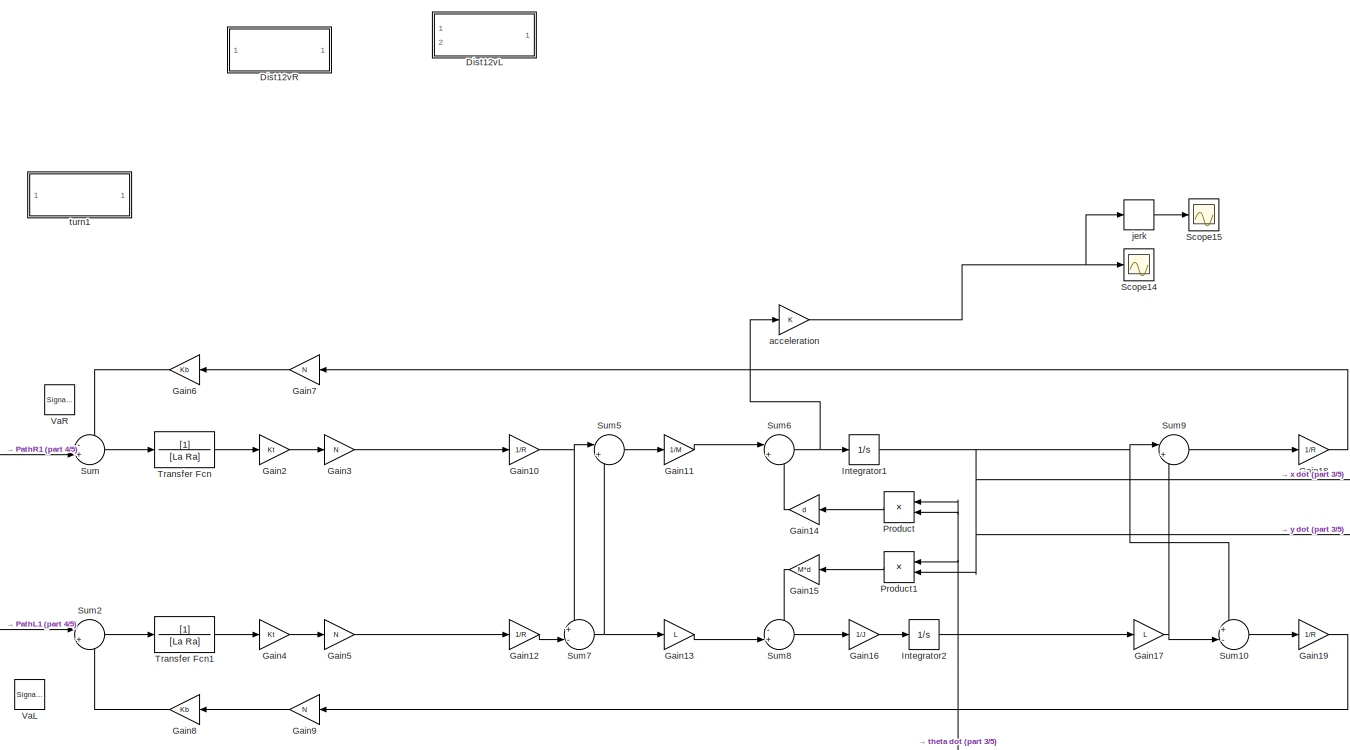
[diagram: root canvas - part 1/5, top center region]
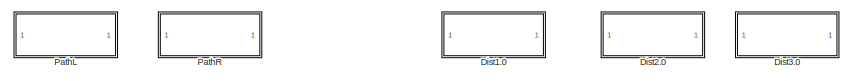
[diagram: root canvas - part 2/5, top left region]
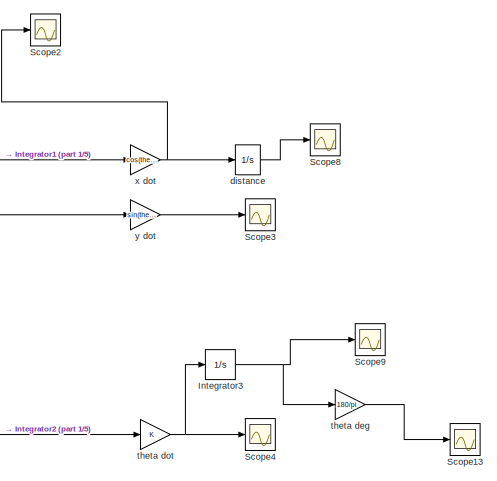
[diagram: root canvas - part 3/5, middle right region]
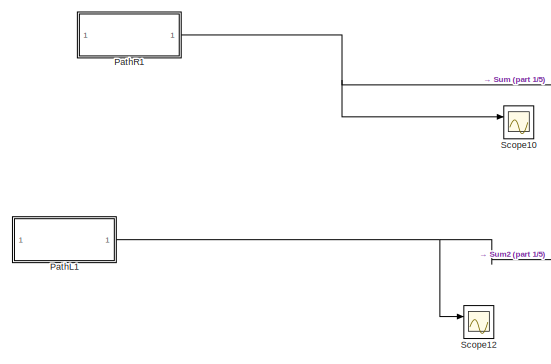
[diagram: root canvas - part 4/5, middle left region]
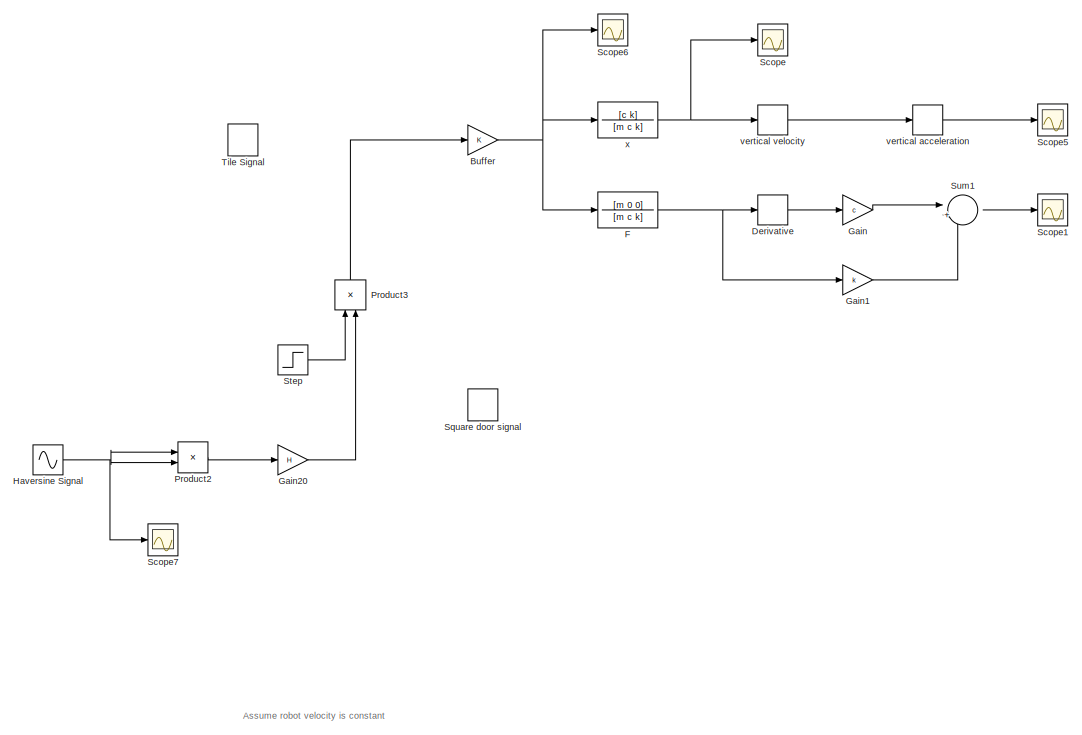
[diagram: root canvas - part 5/5, bottom center region]
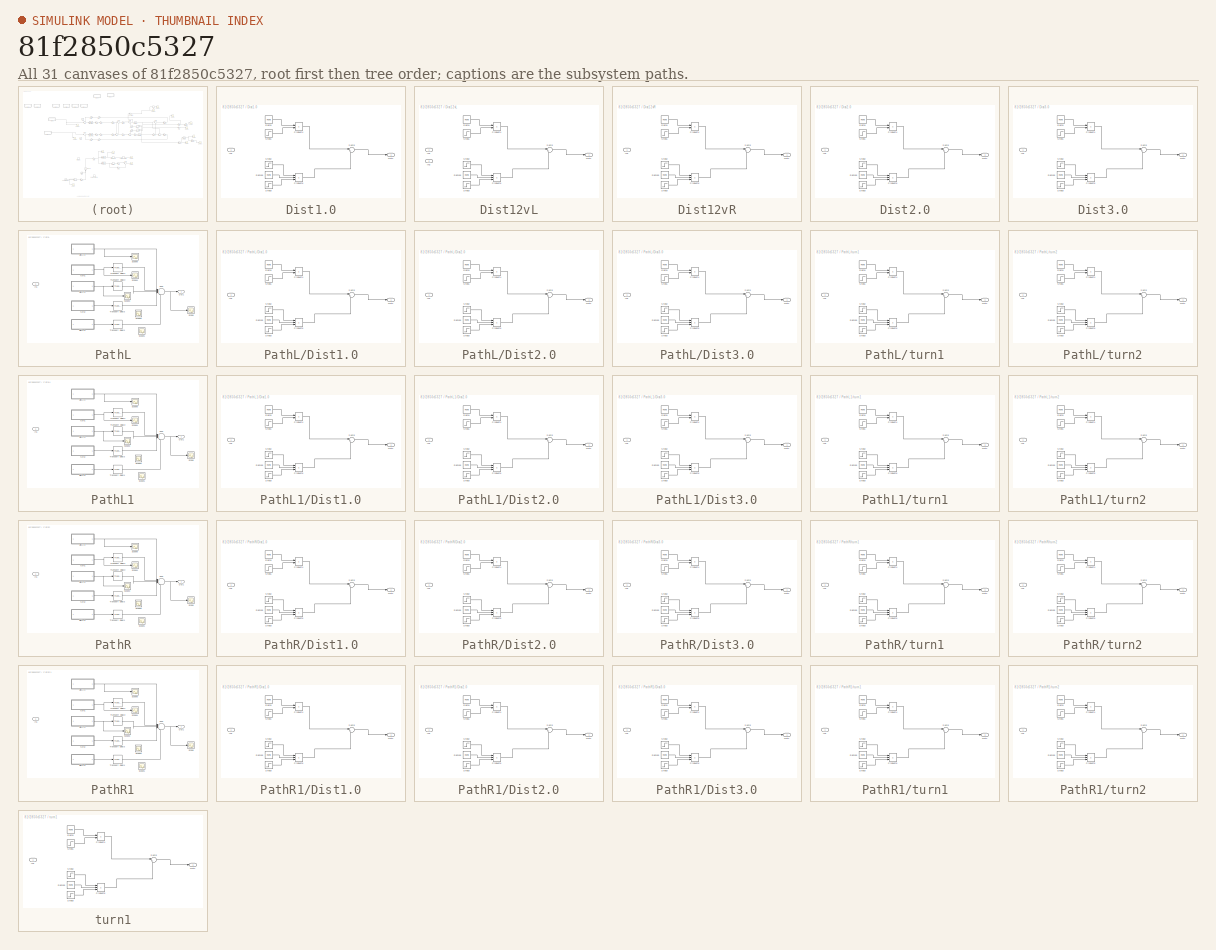
[diagram: thumbnail index - all 31 canvases of the model, root first then tree order]
MODEL slx_81f2850c5327
KIND model
CONFIG AbsTol = auto
CONFIG EnableMultiTasking = off
CONFIG FixedStep = auto
CONFIG MaxStep = auto
CONFIG MinStep = auto
CONFIG RelTol = 1e-3
CONFIG SampleTimeConstraint = Unconstrained
CONFIG SolverName = VariableStepAuto
CONFIG StartTime = 0.0
CONFIG StopTime = 35
BLOCK [Gain] Buffer
BLOCK [Derivative] Derivative
BLOCK [SubSystem] Dist1.0
  Ports = [1, 1]
  RequestExecContextInheritance = off
BLOCK [Inport] Dist1.0/In1
BLOCK [Outport] Dist1.0/Out1
BLOCK [Product] Dist1.0/Product4
  Ports = [2, 1]
BLOCK [Product] Dist1.0/Product6
  Inputs = 3
  Ports = [3, 1]
BLOCK [Reference] Dist1.0/Ramp  REF=simulink/Sources/Ramp
  Ports = [0, 1]
  SourceBlock = simulink/Sources/Ramp
  SourceProductBaseCode = SL
  SourceType = Ramp
BLOCK [Reference] Dist1.0/Ramp3  REF=simulink/Sources/Ramp
  Ports = [0, 1]
  SourceBlock = simulink/Sources/Ramp
  SourceProductBaseCode = SL
  SourceType = Ramp
BLOCK [Step] Dist1.0/Step1
  After = 0
  Before = 1
  SampleTime = 0
  Time = 2.774316232
BLOCK [Step] Dist1.0/Step2
  NameLocation = left
  SampleTime = 0
  Time = 2.774316232
BLOCK [Step] Dist1.0/Step3
  After = 0
  Before = 1
  SampleTime = 0
  Time = 7.5+2.774316232
BLOCK [Sum] Dist1.0/Sum3
  Inputs = |++
  Ports = [2, 1]
BLOCK [SubSystem] Dist12vL
  PortSchema = {"entries":[{"content":{"sides":[{"content":{"connectorIds":["In1"]},"type":"ConnectorPlacement.EquallySpacedRectSide","uuid":"77373f5c-8aad-48a2-be44-9d2188a389c4"},{"content":{"connectorIds":["Out1"],"side":"RIGHT"},"type":"ConnectorPlacement.EquallySpacedRectSide","uuid":"99626a2b-1b19-4808-950b-0fc4e8688bc7"},{"content":{"connectorIds":["In2"],"side":"TOP"},"type":"ConnectorPlacement.EquallySp...<+245ch>
  Ports = [2, 1]
  RequestExecContextInheritance = off
BLOCK [Inport] Dist12vL/In1
BLOCK [Inport] Dist12vL/In2
  Port = 2
BLOCK [Outport] Dist12vL/Out1
BLOCK [Product] Dist12vL/Product4
  Ports = [2, 1]
BLOCK [Product] Dist12vL/Product6
  Inputs = 3
  Ports = [3, 1]
BLOCK [Reference] Dist12vL/Ramp  REF=simulink/Sources/Ramp
  Ports = [0, 1]
  SourceBlock = simulink/Sources/Ramp
  SourceProductBaseCode = SL
  SourceType = Ramp
BLOCK [Reference] Dist12vL/Ramp3  REF=simulink/Sources/Ramp
  Ports = [0, 1]
  SourceBlock = simulink/Sources/Ramp
  SourceProductBaseCode = SL
  SourceType = Ramp
BLOCK [Step] Dist12vL/Step1
  After = 0
  Before = 1
  SampleTime = 0
  Time = 2.774316232
BLOCK [Step] Dist12vL/Step2
  NameLocation = left
  SampleTime = 0
  Time = 2.774316232
BLOCK [Step] Dist12vL/Step3
  After = 0
  Before = 1
  SampleTime = 0
  Time = 7.5+2.774316232
BLOCK [Sum] Dist12vL/Sum3
  Inputs = |++
  Ports = [2, 1]
BLOCK [SubSystem] Dist12vR
  Ports = [1, 1]
  RequestExecContextInheritance = off
BLOCK [Inport] Dist12vR/In1
BLOCK [Outport] Dist12vR/Out1
BLOCK [Product] Dist12vR/Product4
  Ports = [2, 1]
BLOCK [Product] Dist12vR/Product6
  Inputs = 3
  Ports = [3, 1]
BLOCK [Reference] Dist12vR/Ramp  REF=simulink/Sources/Ramp
  Ports = [0, 1]
  SourceBlock = simulink/Sources/Ramp
  SourceProductBaseCode = SL
  SourceType = Ramp
BLOCK [Reference] Dist12vR/Ramp3  REF=simulink/Sources/Ramp
  Ports = [0, 1]
  SourceBlock = simulink/Sources/Ramp
  SourceProductBaseCode = SL
  SourceType = Ramp
BLOCK [Step] Dist12vR/Step1
  After = 0
  Before = 1
  SampleTime = 0
  Time = 2.774316232
BLOCK [Step] Dist12vR/Step2
  NameLocation = left
  SampleTime = 0
  Time = 2.774316232
BLOCK [Step] Dist12vR/Step3
  After = 0
  Before = 1
  SampleTime = 0
  Time = 7.5+2.774316232
BLOCK [Sum] Dist12vR/Sum3
  Inputs = |++
  Ports = [2, 1]
BLOCK [SubSystem] Dist2.0
  Ports = [1, 1]
  RequestExecContextInheritance = off
BLOCK [Inport] Dist2.0/In1
BLOCK [Outport] Dist2.0/Out1
BLOCK [Product] Dist2.0/Product4
  Ports = [2, 1]
BLOCK [Product] Dist2.0/Product6
  Inputs = 3
  Ports = [3, 1]
BLOCK [Reference] Dist2.0/Ramp  REF=simulink/Sources/Ramp
  Ports = [0, 1]
  SourceBlock = simulink/Sources/Ramp
  SourceProductBaseCode = SL
  SourceType = Ramp
BLOCK [Reference] Dist2.0/Ramp3  REF=simulink/Sources/Ramp
  Ports = [0, 1]
  SourceBlock = simulink/Sources/Ramp
  SourceProductBaseCode = SL
  SourceType = Ramp
BLOCK [Step] Dist2.0/Step1
  After = 0
  Before = 1
  SampleTime = 0
  Time = 2.774316232
BLOCK [Step] Dist2.0/Step2
  NameLocation = left
  SampleTime = 0
  Time = 2.774316232
BLOCK [Step] Dist2.0/Step3
  After = 0
  Before = 1
  SampleTime = 0
  Time = 5+2.774316232
BLOCK [Sum] Dist2.0/Sum3
  Inputs = |++
  Ports = [2, 1]
BLOCK [SubSystem] Dist3.0
  Ports = [1, 1]
  RequestExecContextInheritance = off
BLOCK [Inport] Dist3.0/In1
BLOCK [Outport] Dist3.0/Out1
BLOCK [Product] Dist3.0/Product4
  Ports = [2, 1]
BLOCK [Product] Dist3.0/Product6
  Inputs = 3
  Ports = [3, 1]
BLOCK [Reference] Dist3.0/Ramp  REF=simulink/Sources/Ramp
  Ports = [0, 1]
  SourceBlock = simulink/Sources/Ramp
  SourceProductBaseCode = SL
  SourceType = Ramp
BLOCK [Reference] Dist3.0/Ramp3  REF=simulink/Sources/Ramp
  Ports = [0, 1]
  SourceBlock = simulink/Sources/Ramp
  SourceProductBaseCode = SL
  SourceType = Ramp
BLOCK [Step] Dist3.0/Step1
  After = 0
  Before = 1
  SampleTime = 0
  Time = 2.774316232
BLOCK [Step] Dist3.0/Step2
  NameLocation = left
  SampleTime = 0
  Time = 2.774316232
BLOCK [Step] Dist3.0/Step3
  After = 0
  Before = 1
  SampleTime = 0
  Time = 4+2.774316232
BLOCK [Sum] Dist3.0/Sum3
  Inputs = |++
  Ports = [2, 1]
BLOCK [TransferFcn] F
  Denominator = [m c k]
  Numerator = [m 0 0]
BLOCK [Gain] Gain
  Gain = c
BLOCK [Gain] Gain1
  Gain = k
BLOCK [Gain] Gain10
  Gain = 1/R
BLOCK [Gain] Gain11
  Gain = 1/M
BLOCK [Gain] Gain12
  Gain = 1/R
BLOCK [Gain] Gain13
  Gain = L
BLOCK [Gain] Gain14
  Gain = d
BLOCK [Gain] Gain15
  Gain = M*d
BLOCK [Gain] Gain16
  Gain = 1/J
BLOCK [Gain] Gain17
  Gain = L
BLOCK [Gain] Gain18
  Gain = 1/R
BLOCK [Gain] Gain19
  Gain = 1/R
BLOCK [Gain] Gain2
  Gain = Kt
BLOCK [Gain] Gain20
  Gain = H
BLOCK [Gain] Gain3
  Gain = N
BLOCK [Gain] Gain4
  Gain = Kt
BLOCK [Gain] Gain5
  Gain = N
BLOCK [Gain] Gain6
  Gain = Kb
BLOCK [Gain] Gain7
  Gain = N
BLOCK [Gain] Gain8
  Gain = Kb
BLOCK [Gain] Gain9
  Gain = N
BLOCK [Sin] Haversine Signal
  Frequency = pi * v / len
  Ports = [0, 1]
  SampleTime = 0
BLOCK [Integrator] Integrator1
  Ports = [1, 1]
BLOCK [Integrator] Integrator2
  Ports = [1, 1]
BLOCK [Integrator] Integrator3
  Ports = [1, 1]
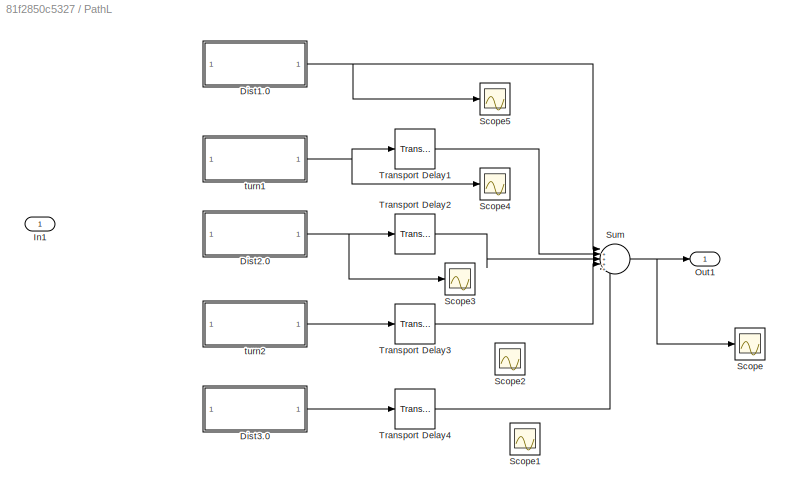
BLOCK [SubSystem] PathL
  Ports = [1, 1]
  RequestExecContextInheritance = off
BLOCK [SubSystem] PathL/Dist1.0
  Ports = [1, 1]
  RequestExecContextInheritance = off
BLOCK [Inport] PathL/Dist1.0/In1
BLOCK [Outport] PathL/Dist1.0/Out1
BLOCK [Product] PathL/Dist1.0/Product4
  Ports = [2, 1]
BLOCK [Product] PathL/Dist1.0/Product6
  Inputs = 3
  Ports = [3, 1]
BLOCK [Reference] PathL/Dist1.0/Ramp  REF=simulink/Sources/Ramp
  Ports = [0, 1]
  SourceBlock = simulink/Sources/Ramp
  SourceProductBaseCode = SL
  SourceType = Ramp
BLOCK [Reference] PathL/Dist1.0/Ramp3  REF=simulink/Sources/Ramp
  Ports = [0, 1]
  SourceBlock = simulink/Sources/Ramp
  SourceProductBaseCode = SL
  SourceType = Ramp
BLOCK [Step] PathL/Dist1.0/Step1
  After = 0
  Before = 1
  SampleTime = 0
  Time = 2.774316232
BLOCK [Step] PathL/Dist1.0/Step2
  NameLocation = left
  SampleTime = 0
  Time = 2.774316232
BLOCK [Step] PathL/Dist1.0/Step3
  After = 0
  Before = 1
  SampleTime = 0
  Time = 7.5+2.774316232
BLOCK [Sum] PathL/Dist1.0/Sum3
  Inputs = |++
  Ports = [2, 1]
BLOCK [SubSystem] PathL/Dist2.0
  Ports = [1, 1]
  RequestExecContextInheritance = off
BLOCK [Inport] PathL/Dist2.0/In1
BLOCK [Outport] PathL/Dist2.0/Out1
BLOCK [Product] PathL/Dist2.0/Product4
  Ports = [2, 1]
BLOCK [Product] PathL/Dist2.0/Product6
  Inputs = 3
  Ports = [3, 1]
BLOCK [Reference] PathL/Dist2.0/Ramp  REF=simulink/Sources/Ramp
  Ports = [0, 1]
  SourceBlock = simulink/Sources/Ramp
  SourceProductBaseCode = SL
  SourceType = Ramp
BLOCK [Reference] PathL/Dist2.0/Ramp3  REF=simulink/Sources/Ramp
  Ports = [0, 1]
  SourceBlock = simulink/Sources/Ramp
  SourceProductBaseCode = SL
  SourceType = Ramp
BLOCK [Step] PathL/Dist2.0/Step1
  After = 0
  Before = 1
  SampleTime = 0
  Time = 2.774316232
BLOCK [Step] PathL/Dist2.0/Step2
  NameLocation = left
  SampleTime = 0
  Time = 2.774316232
BLOCK [Step] PathL/Dist2.0/Step3
  After = 0
  Before = 1
  SampleTime = 0
  Time = 5+2.774316232
BLOCK [Sum] PathL/Dist2.0/Sum3
  Inputs = |++
  Ports = [2, 1]
BLOCK [SubSystem] PathL/Dist3.0
  Ports = [1, 1]
  RequestExecContextInheritance = off
BLOCK [Inport] PathL/Dist3.0/In1
BLOCK [Outport] PathL/Dist3.0/Out1
BLOCK [Product] PathL/Dist3.0/Product4
  Ports = [2, 1]
BLOCK [Product] PathL/Dist3.0/Product6
  Inputs = 3
  Ports = [3, 1]
BLOCK [Reference] PathL/Dist3.0/Ramp  REF=simulink/Sources/Ramp
  Ports = [0, 1]
  SourceBlock = simulink/Sources/Ramp
  SourceProductBaseCode = SL
  SourceType = Ramp
BLOCK [Reference] PathL/Dist3.0/Ramp3  REF=simulink/Sources/Ramp
  Ports = [0, 1]
  SourceBlock = simulink/Sources/Ramp
  SourceProductBaseCode = SL
  SourceType = Ramp
BLOCK [Step] PathL/Dist3.0/Step1
  After = 0
  Before = 1
  SampleTime = 0
  Time = 2.774316232
BLOCK [Step] PathL/Dist3.0/Step2
  NameLocation = left
  SampleTime = 0
  Time = 2.774316232
BLOCK [Step] PathL/Dist3.0/Step3
  After = 0
  Before = 1
  SampleTime = 0
  Time = 4+2.774316232
BLOCK [Sum] PathL/Dist3.0/Sum3
  Inputs = |++
  Ports = [2, 1]
BLOCK [Inport] PathL/In1
BLOCK [Outport] PathL/Out1
BLOCK [Scope] PathL/Scope
  Floating = off
  NumInputPorts = 1
  Ports = [1]
  ScopeSpecificationString = Simulink.scopes.TimeScopeBlockCfg('CurrentConfiguration', extmgr.ConfigurationSet(extmgr.Configuration('Core','General UI',true),extmgr.Configuration('Core','Source UI',true),extmgr.Configuration('Sources','WiredSimulink',true,'DataLoggingVariableName','ScopeData1'),extmgr.Configuration('Visuals','Time Domain',true,'SerializedDisplays',{struct('MinYLimReal','-7.1625','MaxYLimReal','64.4625','YLabe...<+1387ch>
BLOCK [Scope] PathL/Scope1
  Floating = off
  NumInputPorts = 1
  Ports = [1]
  ScopeSpecificationString = Simulink.scopes.TimeScopeBlockCfg('CurrentConfiguration', extmgr.ConfigurationSet(extmgr.Configuration('Core','General UI',true),extmgr.Configuration('Core','Source UI',true),extmgr.Configuration('Sources','WiredSimulink',true,'DataLoggingVariableName','ScopeData3'),extmgr.Configuration('Visuals','Time Domain',true,'SerializedDisplays',{struct('MinYLimReal','-8.5825','MaxYLimReal','77.2425','YLabe...<+1360ch>  <repeated x4 — deduplicated; at blocks: Scope1>
BLOCK [Scope] PathL/Scope2
  Floating = off
  NumInputPorts = 1
  Ports = [1]
  ScopeSpecificationString = Simulink.scopes.TimeScopeBlockCfg('CurrentConfiguration', extmgr.ConfigurationSet(extmgr.Configuration('Core','General UI',true),extmgr.Configuration('Core','Source UI',true),extmgr.Configuration('Sources','WiredSimulink',true,'DataLoggingVariableName','ScopeData4'),extmgr.Configuration('Visuals','Time Domain',true,'SerializedDisplays',{struct('MinYLimReal','-8.5825','MaxYLimReal','77.2425','YLabe...<+1360ch>  <repeated x4 — deduplicated; at blocks: Scope2>
BLOCK [Scope] PathL/Scope3
  Floating = off
  NumInputPorts = 1
  Ports = [1]
  ScopeSpecificationString = Simulink.scopes.TimeScopeBlockCfg('CurrentConfiguration', extmgr.ConfigurationSet(extmgr.Configuration('Core','General UI',true),extmgr.Configuration('Core','Source UI',true),extmgr.Configuration('Sources','WiredSimulink',true,'DataLoggingVariableName','ScopeData5'),extmgr.Configuration('Visuals','Time Domain',true,'SerializedDisplays',{struct('MinYLimReal','-8.5825','MaxYLimReal','77.2425','YLabe...<+1360ch>  <repeated x4 — deduplicated; at blocks: Scope3>
BLOCK [Scope] PathL/Scope4
  Floating = off
  NumInputPorts = 1
  Ports = [1]
  ScopeSpecificationString = Simulink.scopes.TimeScopeBlockCfg('CurrentConfiguration', extmgr.ConfigurationSet(extmgr.Configuration('Core','General UI',true),extmgr.Configuration('Core','Source UI',true),extmgr.Configuration('Sources','WiredSimulink',true,'DataLoggingVariableName','ScopeData6'),extmgr.Configuration('Visuals','Time Domain',true,'SerializedDisplays',{struct('MinYLimReal','-1.4325','MaxYLimReal','12.8925','YLabe...<+1397ch>  <repeated x4 — deduplicated; at blocks: Scope4>
BLOCK [Scope] PathL/Scope5
  Floating = off
  NumInputPorts = 1
  Ports = [1]
  ScopeSpecificationString = Simulink.scopes.TimeScopeBlockCfg('CurrentConfiguration', extmgr.ConfigurationSet(extmgr.Configuration('Core','General UI',true),extmgr.Configuration('Core','Source UI',true),extmgr.Configuration('Sources','WiredSimulink',true,'DataLoggingVariableName','ScopeData7'),extmgr.Configuration('Visuals','Time Domain',true,'SerializedDisplays',{struct('MinYLimReal','-7.15','MaxYLimReal','64.35','YLabelRea...<+1352ch>  <repeated x4 — deduplicated; at blocks: Scope5>
BLOCK [Sum] PathL/Sum
  Inputs = |+++++
  Ports = [5, 1]
BLOCK [TransportDelay] PathL/Transport Delay1
  DelayTime = 10.77431623
  Ports = [1, 1]
BLOCK [TransportDelay] PathL/Transport Delay2
  DelayTime = 13.51524326
  Ports = [1, 1]
BLOCK [TransportDelay] PathL/Transport Delay3
  DelayTime = 21.7895595
  Ports = [1, 1]
BLOCK [TransportDelay] PathL/Transport Delay4
  DelayTime = 24.53048653
  Ports = [1, 1]
BLOCK [SubSystem] PathL/turn1
  Ports = [1, 1]
  RequestExecContextInheritance = off
BLOCK [Inport] PathL/turn1/In1
BLOCK [Outport] PathL/turn1/Out1
BLOCK [Product] PathL/turn1/Product4
  Ports = [2, 1]
BLOCK [Product] PathL/turn1/Product6
  Inputs = 3
  Ports = [3, 1]
BLOCK [Reference] PathL/turn1/Ramp  REF=simulink/Sources/Ramp
  Ports = [0, 1]
  SourceBlock = simulink/Sources/Ramp
  SourceProductBaseCode = SL
  SourceType = Ramp
BLOCK [Reference] PathL/turn1/Ramp3  REF=simulink/Sources/Ramp
  Ports = [0, 1]
  SourceBlock = simulink/Sources/Ramp
  SourceProductBaseCode = SL
  SourceType = Ramp
BLOCK [Step] PathL/turn1/Step1
  After = 0
  Before = 1
  SampleTime = 0
  Time = 0.277431623
BLOCK [Step] PathL/turn1/Step2
  NameLocation = left
  SampleTime = 0
  Time = 0.277431623
BLOCK [Step] PathL/turn1/Step3
  After = 0
  Before = 1
  SampleTime = 0
  Time = 1.963495408+0.277431623
BLOCK [Sum] PathL/turn1/Sum3
  Inputs = |++
  Ports = [2, 1]
BLOCK [SubSystem] PathL/turn2
  Ports = [1, 1]
  RequestExecContextInheritance = off
BLOCK [Inport] PathL/turn2/In1
BLOCK [Outport] PathL/turn2/Out1
BLOCK [Product] PathL/turn2/Product4
  Ports = [2, 1]
BLOCK [Product] PathL/turn2/Product6
  Inputs = 3
  Ports = [3, 1]
BLOCK [Reference] PathL/turn2/Ramp  REF=simulink/Sources/Ramp
  Ports = [0, 1]
  SourceBlock = simulink/Sources/Ramp
  SourceProductBaseCode = SL
  SourceType = Ramp
BLOCK [Reference] PathL/turn2/Ramp3  REF=simulink/Sources/Ramp
  Ports = [0, 1]
  SourceBlock = simulink/Sources/Ramp
  SourceProductBaseCode = SL
  SourceType = Ramp
BLOCK [Step] PathL/turn2/Step1
  After = 0
  Before = 1
  SampleTime = 0
  Time = 0.277431623
BLOCK [Step] PathL/turn2/Step2
  NameLocation = left
  SampleTime = 0
  Time = 0.277431623
BLOCK [Step] PathL/turn2/Step3
  After = 0
  Before = 1
  SampleTime = 0
  Time = 1.963495408+0.277431623
BLOCK [Sum] PathL/turn2/Sum3
  Inputs = |++
  Ports = [2, 1]
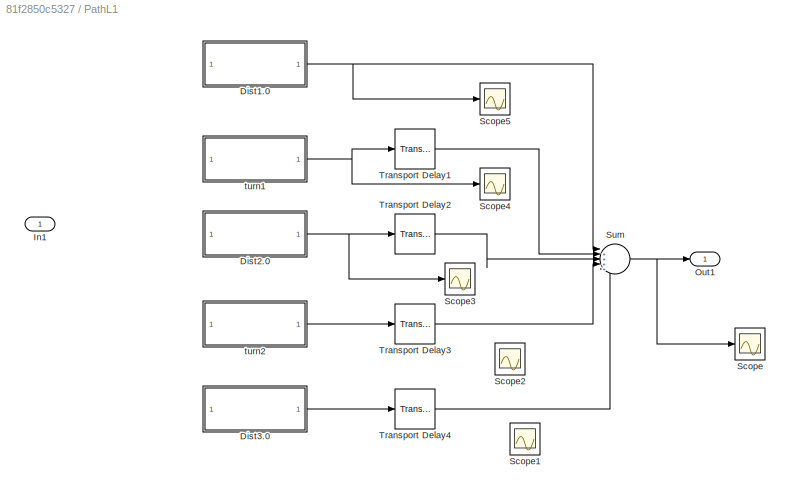
BLOCK [SubSystem] PathL1
  Ports = [1, 1]
  RequestExecContextInheritance = off
BLOCK [SubSystem] PathL1/Dist1.0
  Ports = [1, 1]
  RequestExecContextInheritance = off
BLOCK [Inport] PathL1/Dist1.0/In1
BLOCK [Outport] PathL1/Dist1.0/Out1
BLOCK [Product] PathL1/Dist1.0/Product4
  Ports = [2, 1]
BLOCK [Product] PathL1/Dist1.0/Product6
  Inputs = 3
  Ports = [3, 1]
BLOCK [Reference] PathL1/Dist1.0/Ramp  REF=simulink/Sources/Ramp
  Ports = [0, 1]
  SourceBlock = simulink/Sources/Ramp
  SourceProductBaseCode = SL
  SourceType = Ramp
BLOCK [Reference] PathL1/Dist1.0/Ramp3  REF=simulink/Sources/Ramp
  Ports = [0, 1]
  SourceBlock = simulink/Sources/Ramp
  SourceProductBaseCode = SL
  SourceType = Ramp
BLOCK [Step] PathL1/Dist1.0/Step1
  After = 0
  Before = 1
  SampleTime = 0
  Time = 2.774316232
BLOCK [Step] PathL1/Dist1.0/Step2
  NameLocation = left
  SampleTime = 0
  Time = 2.774316232
BLOCK [Step] PathL1/Dist1.0/Step3
  After = 0
  Before = 1
  SampleTime = 0
  Time = 7.5+2.774316232
BLOCK [Sum] PathL1/Dist1.0/Sum3
  Inputs = |++
  Ports = [2, 1]
BLOCK [SubSystem] PathL1/Dist2.0
  Ports = [1, 1]
  RequestExecContextInheritance = off
BLOCK [Inport] PathL1/Dist2.0/In1
BLOCK [Outport] PathL1/Dist2.0/Out1
BLOCK [Product] PathL1/Dist2.0/Product4
  Ports = [2, 1]
BLOCK [Product] PathL1/Dist2.0/Product6
  Inputs = 3
  Ports = [3, 1]
BLOCK [Reference] PathL1/Dist2.0/Ramp  REF=simulink/Sources/Ramp
  Ports = [0, 1]
  SourceBlock = simulink/Sources/Ramp
  SourceProductBaseCode = SL
  SourceType = Ramp
BLOCK [Reference] PathL1/Dist2.0/Ramp3  REF=simulink/Sources/Ramp
  Ports = [0, 1]
  SourceBlock = simulink/Sources/Ramp
  SourceProductBaseCode = SL
  SourceType = Ramp
BLOCK [Step] PathL1/Dist2.0/Step1
  After = 0
  Before = 1
  SampleTime = 0
  Time = 2.774316232
BLOCK [Step] PathL1/Dist2.0/Step2
  NameLocation = left
  SampleTime = 0
  Time = 2.774316232
BLOCK [Step] PathL1/Dist2.0/Step3
  After = 0
  Before = 1
  SampleTime = 0
  Time = 5+2.774316232
BLOCK [Sum] PathL1/Dist2.0/Sum3
  Inputs = |++
  Ports = [2, 1]
BLOCK [SubSystem] PathL1/Dist3.0
  Ports = [1, 1]
  RequestExecContextInheritance = off
BLOCK [Inport] PathL1/Dist3.0/In1
BLOCK [Outport] PathL1/Dist3.0/Out1
BLOCK [Product] PathL1/Dist3.0/Product4
  Ports = [2, 1]
BLOCK [Product] PathL1/Dist3.0/Product6
  Inputs = 3
  Ports = [3, 1]
BLOCK [Reference] PathL1/Dist3.0/Ramp  REF=simulink/Sources/Ramp
  Ports = [0, 1]
  SourceBlock = simulink/Sources/Ramp
  SourceProductBaseCode = SL
  SourceType = Ramp
BLOCK [Reference] PathL1/Dist3.0/Ramp3  REF=simulink/Sources/Ramp
  Ports = [0, 1]
  SourceBlock = simulink/Sources/Ramp
  SourceProductBaseCode = SL
  SourceType = Ramp
BLOCK [Step] PathL1/Dist3.0/Step1
  After = 0
  Before = 1
  SampleTime = 0
  Time = 2.774316232
BLOCK [Step] PathL1/Dist3.0/Step2
  NameLocation = left
  SampleTime = 0
  Time = 2.774316232
BLOCK [Step] PathL1/Dist3.0/Step3
  After = 0
  Before = 1
  SampleTime = 0
  Time = 4+2.774316232
BLOCK [Sum] PathL1/Dist3.0/Sum3
  Inputs = |++
  Ports = [2, 1]
BLOCK [Inport] PathL1/In1
BLOCK [Outport] PathL1/Out1
BLOCK [Scope] PathL1/Scope
  Floating = off
  NumInputPorts = 1
  Ports = [1]
  ScopeSpecificationString = Simulink.scopes.TimeScopeBlockCfg('CurrentConfiguration', extmgr.ConfigurationSet(extmgr.Configuration('Core','General UI',true),extmgr.Configuration('Core','Source UI',true),extmgr.Configuration('Sources','WiredSimulink',true,'DataLoggingVariableName','ScopeData1'),extmgr.Configuration('Visuals','Time Domain',true,'SerializedDisplays',{struct('MinYLimReal','-7.1625','MaxYLimReal','64.4625','YLabe...<+1387ch>
BLOCK [Scope] PathL1/Scope1
  Floating = off
  NumInputPorts = 1
  Ports = [1]
BLOCK [Scope] PathL1/Scope2
  Floating = off
  NumInputPorts = 1
  Ports = [1]
BLOCK [Scope] PathL1/Scope3
  Floating = off
  NumInputPorts = 1
  Ports = [1]
BLOCK [Scope] PathL1/Scope4
  Floating = off
  NumInputPorts = 1
  Ports = [1]
BLOCK [Scope] PathL1/Scope5
  Floating = off
  NumInputPorts = 1
  Ports = [1]
BLOCK [Sum] PathL1/Sum
  Inputs = |+++++
  Ports = [5, 1]
BLOCK [TransportDelay] PathL1/Transport Delay1
  DelayTime = 10.77431623
  Ports = [1, 1]
BLOCK [TransportDelay] PathL1/Transport Delay2
  DelayTime = 13.51524326
  Ports = [1, 1]
BLOCK [TransportDelay] PathL1/Transport Delay3
  DelayTime = 21.7895595
  Ports = [1, 1]
BLOCK [TransportDelay] PathL1/Transport Delay4
  DelayTime = 24.53048653
  Ports = [1, 1]
BLOCK [SubSystem] PathL1/turn1
  Ports = [1, 1]
  RequestExecContextInheritance = off
BLOCK [Inport] PathL1/turn1/In1
BLOCK [Outport] PathL1/turn1/Out1
BLOCK [Product] PathL1/turn1/Product4
  Ports = [2, 1]
BLOCK [Product] PathL1/turn1/Product6
  Inputs = 3
  Ports = [3, 1]
BLOCK [Reference] PathL1/turn1/Ramp  REF=simulink/Sources/Ramp
  Ports = [0, 1]
  SourceBlock = simulink/Sources/Ramp
  SourceProductBaseCode = SL
  SourceType = Ramp
BLOCK [Reference] PathL1/turn1/Ramp3  REF=simulink/Sources/Ramp
  Ports = [0, 1]
  SourceBlock = simulink/Sources/Ramp
  SourceProductBaseCode = SL
  SourceType = Ramp
BLOCK [Step] PathL1/turn1/Step1
  After = 0
  Before = 1
  SampleTime = 0
  Time = 0.277431623
BLOCK [Step] PathL1/turn1/Step2
  NameLocation = left
  SampleTime = 0
  Time = 0.277431623
BLOCK [Step] PathL1/turn1/Step3
  After = 0
  Before = 1
  SampleTime = 0
  Time = 1.963495408+0.277431623
BLOCK [Sum] PathL1/turn1/Sum3
  Inputs = |++
  Ports = [2, 1]
BLOCK [SubSystem] PathL1/turn2
  Ports = [1, 1]
  RequestExecContextInheritance = off
BLOCK [Inport] PathL1/turn2/In1
BLOCK [Outport] PathL1/turn2/Out1
BLOCK [Product] PathL1/turn2/Product4
  Ports = [2, 1]
BLOCK [Product] PathL1/turn2/Product6
  Inputs = 3
  Ports = [3, 1]
BLOCK [Reference] PathL1/turn2/Ramp  REF=simulink/Sources/Ramp
  Ports = [0, 1]
  SourceBlock = simulink/Sources/Ramp
  SourceProductBaseCode = SL
  SourceType = Ramp
BLOCK [Reference] PathL1/turn2/Ramp3  REF=simulink/Sources/Ramp
  Ports = [0, 1]
  SourceBlock = simulink/Sources/Ramp
  SourceProductBaseCode = SL
  SourceType = Ramp
BLOCK [Step] PathL1/turn2/Step1
  After = 0
  Before = 1
  SampleTime = 0
  Time = 0.277431623
BLOCK [Step] PathL1/turn2/Step2
  NameLocation = left
  SampleTime = 0
  Time = 0.277431623
BLOCK [Step] PathL1/turn2/Step3
  After = 0
  Before = 1
  SampleTime = 0
  Time = 1.963495408+0.277431623
BLOCK [Sum] PathL1/turn2/Sum3
  Inputs = |++
  Ports = [2, 1]
BLOCK [SubSystem] PathR
  Ports = [1, 1]
  RequestExecContextInheritance = off
BLOCK [SubSystem] PathR/Dist1.0
  Ports = [1, 1]
  RequestExecContextInheritance = off
BLOCK [Inport] PathR/Dist1.0/In1
BLOCK [Outport] PathR/Dist1.0/Out1
BLOCK [Product] PathR/Dist1.0/Product4
  Ports = [2, 1]
BLOCK [Product] PathR/Dist1.0/Product6
  Inputs = 3
  Ports = [3, 1]
BLOCK [Reference] PathR/Dist1.0/Ramp  REF=simulink/Sources/Ramp
  Ports = [0, 1]
  SourceBlock = simulink/Sources/Ramp
  SourceProductBaseCode = SL
  SourceType = Ramp
BLOCK [Reference] PathR/Dist1.0/Ramp3  REF=simulink/Sources/Ramp
  Ports = [0, 1]
  SourceBlock = simulink/Sources/Ramp
  SourceProductBaseCode = SL
  SourceType = Ramp
BLOCK [Step] PathR/Dist1.0/Step1
  After = 0
  Before = 1
  SampleTime = 0
  Time = 2.774316232
BLOCK [Step] PathR/Dist1.0/Step2
  NameLocation = left
  SampleTime = 0
  Time = 2.774316232
BLOCK [Step] PathR/Dist1.0/Step3
  After = 0
  Before = 1
  SampleTime = 0
  Time = 7.5+2.774316232
BLOCK [Sum] PathR/Dist1.0/Sum3
  Inputs = |++
  Ports = [2, 1]
BLOCK [SubSystem] PathR/Dist2.0
  Ports = [1, 1]
  RequestExecContextInheritance = off
BLOCK [Inport] PathR/Dist2.0/In1
BLOCK [Outport] PathR/Dist2.0/Out1
BLOCK [Product] PathR/Dist2.0/Product4
  Ports = [2, 1]
BLOCK [Product] PathR/Dist2.0/Product6
  Inputs = 3
  Ports = [3, 1]
BLOCK [Reference] PathR/Dist2.0/Ramp  REF=simulink/Sources/Ramp
  Ports = [0, 1]
  SourceBlock = simulink/Sources/Ramp
  SourceProductBaseCode = SL
  SourceType = Ramp
BLOCK [Reference] PathR/Dist2.0/Ramp3  REF=simulink/Sources/Ramp
  Ports = [0, 1]
  SourceBlock = simulink/Sources/Ramp
  SourceProductBaseCode = SL
  SourceType = Ramp
BLOCK [Step] PathR/Dist2.0/Step1
  After = 0
  Before = 1
  SampleTime = 0
  Time = 2.774316232
BLOCK [Step] PathR/Dist2.0/Step2
  NameLocation = left
  SampleTime = 0
  Time = 2.774316232
BLOCK [Step] PathR/Dist2.0/Step3
  After = 0
  Before = 1
  SampleTime = 0
  Time = 5+2.774316232
BLOCK [Sum] PathR/Dist2.0/Sum3
  Inputs = |++
  Ports = [2, 1]
BLOCK [SubSystem] PathR/Dist3.0
  Ports = [1, 1]
  RequestExecContextInheritance = off
BLOCK [Inport] PathR/Dist3.0/In1
BLOCK [Outport] PathR/Dist3.0/Out1
BLOCK [Product] PathR/Dist3.0/Product4
  Ports = [2, 1]
BLOCK [Product] PathR/Dist3.0/Product6
  Inputs = 3
  Ports = [3, 1]
BLOCK [Reference] PathR/Dist3.0/Ramp  REF=simulink/Sources/Ramp
  Ports = [0, 1]
  SourceBlock = simulink/Sources/Ramp
  SourceProductBaseCode = SL
  SourceType = Ramp
BLOCK [Reference] PathR/Dist3.0/Ramp3  REF=simulink/Sources/Ramp
  Ports = [0, 1]
  SourceBlock = simulink/Sources/Ramp
  SourceProductBaseCode = SL
  SourceType = Ramp
BLOCK [Step] PathR/Dist3.0/Step1
  After = 0
  Before = 1
  SampleTime = 0
  Time = 2.774316232
BLOCK [Step] PathR/Dist3.0/Step2
  NameLocation = left
  SampleTime = 0
  Time = 2.774316232
BLOCK [Step] PathR/Dist3.0/Step3
  After = 0
  Before = 1
  SampleTime = 0
  Time = 4+2.774316232
BLOCK [Sum] PathR/Dist3.0/Sum3
  Inputs = |++
  Ports = [2, 1]
BLOCK [Inport] PathR/In1
BLOCK [Outport] PathR/Out1
BLOCK [Scope] PathR/Scope
  Floating = off
  NumInputPorts = 1
  Ports = [1]
  ScopeSpecificationString = Simulink.scopes.TimeScopeBlockCfg('CurrentConfiguration', extmgr.ConfigurationSet(extmgr.Configuration('Core','General UI',true),extmgr.Configuration('Core','Source UI',true),extmgr.Configuration('Sources','WiredSimulink',true,'DataLoggingVariableName','ScopeData1'),extmgr.Configuration('Visuals','Time Domain',true,'SerializedDisplays',{struct('MinYLimReal','-20.055','MaxYLimReal','65.895','YLabel...<+1383ch>
BLOCK [Scope] PathR/Scope1
  Floating = off
  NumInputPorts = 1
  Ports = [1]
BLOCK [Scope] PathR/Scope2
  Floating = off
  NumInputPorts = 1
  Ports = [1]
BLOCK [Scope] PathR/Scope3
  Floating = off
  NumInputPorts = 1
  Ports = [1]
BLOCK [Scope] PathR/Scope4
  Floating = off
  NumInputPorts = 1
  Ports = [1]
BLOCK [Scope] PathR/Scope5
  Floating = off
  NumInputPorts = 1
  Ports = [1]
BLOCK [Sum] PathR/Sum
  Inputs = |+-+-+
  Ports = [5, 1]
BLOCK [TransportDelay] PathR/Transport Delay1
  DelayTime = 10.77431623
  Ports = [1, 1]
BLOCK [TransportDelay] PathR/Transport Delay2
  DelayTime = 13.51524326
  Ports = [1, 1]
BLOCK [TransportDelay] PathR/Transport Delay3
  DelayTime = 21.7895595
  Ports = [1, 1]
BLOCK [TransportDelay] PathR/Transport Delay4
  DelayTime = 24.53048653
  Ports = [1, 1]
BLOCK [SubSystem] PathR/turn1
  Ports = [1, 1]
  RequestExecContextInheritance = off
BLOCK [Inport] PathR/turn1/In1
BLOCK [Outport] PathR/turn1/Out1
BLOCK [Product] PathR/turn1/Product4
  Ports = [2, 1]
BLOCK [Product] PathR/turn1/Product6
  Inputs = 3
  Ports = [3, 1]
BLOCK [Reference] PathR/turn1/Ramp  REF=simulink/Sources/Ramp
  Ports = [0, 1]
  SourceBlock = simulink/Sources/Ramp
  SourceProductBaseCode = SL
  SourceType = Ramp
BLOCK [Reference] PathR/turn1/Ramp3  REF=simulink/Sources/Ramp
  Ports = [0, 1]
  SourceBlock = simulink/Sources/Ramp
  SourceProductBaseCode = SL
  SourceType = Ramp
BLOCK [Step] PathR/turn1/Step1
  After = 0
  Before = 1
  SampleTime = 0
  Time = 0.277431623
BLOCK [Step] PathR/turn1/Step2
  NameLocation = left
  SampleTime = 0
  Time = 0.277431623
BLOCK [Step] PathR/turn1/Step3
  After = 0
  Before = 1
  SampleTime = 0
  Time = 1.963495408+0.277431623
BLOCK [Sum] PathR/turn1/Sum3
  Inputs = |++
  Ports = [2, 1]
BLOCK [SubSystem] PathR/turn2
  Ports = [1, 1]
  RequestExecContextInheritance = off
BLOCK [Inport] PathR/turn2/In1
BLOCK [Outport] PathR/turn2/Out1
BLOCK [Product] PathR/turn2/Product4
  Ports = [2, 1]
BLOCK [Product] PathR/turn2/Product6
  Inputs = 3
  Ports = [3, 1]
BLOCK [Reference] PathR/turn2/Ramp  REF=simulink/Sources/Ramp
  Ports = [0, 1]
  SourceBlock = simulink/Sources/Ramp
  SourceProductBaseCode = SL
  SourceType = Ramp
BLOCK [Reference] PathR/turn2/Ramp3  REF=simulink/Sources/Ramp
  Ports = [0, 1]
  SourceBlock = simulink/Sources/Ramp
  SourceProductBaseCode = SL
  SourceType = Ramp
BLOCK [Step] PathR/turn2/Step1
  After = 0
  Before = 1
  SampleTime = 0
  Time = 0.277431623
BLOCK [Step] PathR/turn2/Step2
  NameLocation = left
  SampleTime = 0
  Time = 0.277431623
BLOCK [Step] PathR/turn2/Step3
  After = 0
  Before = 1
  SampleTime = 0
  Time = 1.963495408+0.277431623
BLOCK [Sum] PathR/turn2/Sum3
  Inputs = |++
  Ports = [2, 1]
BLOCK [SubSystem] PathR1
  Ports = [1, 1]
  RequestExecContextInheritance = off
BLOCK [SubSystem] PathR1/Dist1.0
  Ports = [1, 1]
  RequestExecContextInheritance = off
BLOCK [Inport] PathR1/Dist1.0/In1
BLOCK [Outport] PathR1/Dist1.0/Out1
BLOCK [Product] PathR1/Dist1.0/Product4
  Ports = [2, 1]
BLOCK [Product] PathR1/Dist1.0/Product6
  Inputs = 3
  Ports = [3, 1]
BLOCK [Reference] PathR1/Dist1.0/Ramp  REF=simulink/Sources/Ramp
  Ports = [0, 1]
  SourceBlock = simulink/Sources/Ramp
  SourceProductBaseCode = SL
  SourceType = Ramp
BLOCK [Reference] PathR1/Dist1.0/Ramp3  REF=simulink/Sources/Ramp
  Ports = [0, 1]
  SourceBlock = simulink/Sources/Ramp
  SourceProductBaseCode = SL
  SourceType = Ramp
BLOCK [Step] PathR1/Dist1.0/Step1
  After = 0
  Before = 1
  SampleTime = 0
  Time = 2.774316232
BLOCK [Step] PathR1/Dist1.0/Step2
  NameLocation = left
  SampleTime = 0
  Time = 2.774316232
BLOCK [Step] PathR1/Dist1.0/Step3
  After = 0
  Before = 1
  SampleTime = 0
  Time = 7.5+2.774316232
BLOCK [Sum] PathR1/Dist1.0/Sum3
  Inputs = |++
  Ports = [2, 1]
BLOCK [SubSystem] PathR1/Dist2.0
  Ports = [1, 1]
  RequestExecContextInheritance = off
BLOCK [Inport] PathR1/Dist2.0/In1
BLOCK [Outport] PathR1/Dist2.0/Out1
BLOCK [Product] PathR1/Dist2.0/Product4
  Ports = [2, 1]
BLOCK [Product] PathR1/Dist2.0/Product6
  Inputs = 3
  Ports = [3, 1]
BLOCK [Reference] PathR1/Dist2.0/Ramp  REF=simulink/Sources/Ramp
  Ports = [0, 1]
  SourceBlock = simulink/Sources/Ramp
  SourceProductBaseCode = SL
  SourceType = Ramp
BLOCK [Reference] PathR1/Dist2.0/Ramp3  REF=simulink/Sources/Ramp
  Ports = [0, 1]
  SourceBlock = simulink/Sources/Ramp
  SourceProductBaseCode = SL
  SourceType = Ramp
BLOCK [Step] PathR1/Dist2.0/Step1
  After = 0
  Before = 1
  SampleTime = 0
  Time = 2.774316232
BLOCK [Step] PathR1/Dist2.0/Step2
  NameLocation = left
  SampleTime = 0
  Time = 2.774316232
BLOCK [Step] PathR1/Dist2.0/Step3
  After = 0
  Before = 1
  SampleTime = 0
  Time = 5+2.774316232
BLOCK [Sum] PathR1/Dist2.0/Sum3
  Inputs = |++
  Ports = [2, 1]
BLOCK [SubSystem] PathR1/Dist3.0
  Ports = [1, 1]
  RequestExecContextInheritance = off
BLOCK [Inport] PathR1/Dist3.0/In1
BLOCK [Outport] PathR1/Dist3.0/Out1
BLOCK [Product] PathR1/Dist3.0/Product4
  Ports = [2, 1]
BLOCK [Product] PathR1/Dist3.0/Product6
  Inputs = 3
  Ports = [3, 1]
BLOCK [Reference] PathR1/Dist3.0/Ramp  REF=simulink/Sources/Ramp
  Ports = [0, 1]
  SourceBlock = simulink/Sources/Ramp
  SourceProductBaseCode = SL
  SourceType = Ramp
BLOCK [Reference] PathR1/Dist3.0/Ramp3  REF=simulink/Sources/Ramp
  Ports = [0, 1]
  SourceBlock = simulink/Sources/Ramp
  SourceProductBaseCode = SL
  SourceType = Ramp
BLOCK [Step] PathR1/Dist3.0/Step1
  After = 0
  Before = 1
  SampleTime = 0
  Time = 2.774316232
BLOCK [Step] PathR1/Dist3.0/Step2
  NameLocation = left
  SampleTime = 0
  Time = 2.774316232
BLOCK [Step] PathR1/Dist3.0/Step3
  After = 0
  Before = 1
  SampleTime = 0
  Time = 4+2.774316232
BLOCK [Sum] PathR1/Dist3.0/Sum3
  Inputs = |++
  Ports = [2, 1]
BLOCK [Inport] PathR1/In1
BLOCK [Outport] PathR1/Out1
BLOCK [Scope] PathR1/Scope
  Floating = off
  NumInputPorts = 1
  Ports = [1]
  ScopeSpecificationString = Simulink.scopes.TimeScopeBlockCfg('CurrentConfiguration', extmgr.ConfigurationSet(extmgr.Configuration('Core','General UI',true),extmgr.Configuration('Core','Source UI',true),extmgr.Configuration('Sources','WiredSimulink',true,'DataLoggingVariableName','ScopeData1'),extmgr.Configuration('Visuals','Time Domain',true,'SerializedDisplays',{struct('MinYLimReal','-20.055','MaxYLimReal','65.895','YLabel...<+1388ch>
BLOCK [Scope] PathR1/Scope1
  Floating = off
  NumInputPorts = 1
  Ports = [1]
BLOCK [Scope] PathR1/Scope2
  Floating = off
  NumInputPorts = 1
  Ports = [1]
BLOCK [Scope] PathR1/Scope3
  Floating = off
  NumInputPorts = 1
  Ports = [1]
BLOCK [Scope] PathR1/Scope4
  Floating = off
  NumInputPorts = 1
  Ports = [1]
BLOCK [Scope] PathR1/Scope5
  Floating = off
  NumInputPorts = 1
  Ports = [1]
BLOCK [Sum] PathR1/Sum
  Inputs = |+-+-+
  Ports = [5, 1]
BLOCK [TransportDelay] PathR1/Transport Delay1
  DelayTime = 10.77431623
  Ports = [1, 1]
BLOCK [TransportDelay] PathR1/Transport Delay2
  DelayTime = 13.51524326
  Ports = [1, 1]
BLOCK [TransportDelay] PathR1/Transport Delay3
  DelayTime = 21.7895595
  Ports = [1, 1]
BLOCK [TransportDelay] PathR1/Transport Delay4
  DelayTime = 24.53048653
  Ports = [1, 1]
BLOCK [SubSystem] PathR1/turn1
  Ports = [1, 1]
  RequestExecContextInheritance = off
BLOCK [Inport] PathR1/turn1/In1
BLOCK [Outport] PathR1/turn1/Out1
BLOCK [Product] PathR1/turn1/Product4
  Ports = [2, 1]
BLOCK [Product] PathR1/turn1/Product6
  Inputs = 3
  Ports = [3, 1]
BLOCK [Reference] PathR1/turn1/Ramp  REF=simulink/Sources/Ramp
  Ports = [0, 1]
  SourceBlock = simulink/Sources/Ramp
  SourceProductBaseCode = SL
  SourceType = Ramp
BLOCK [Reference] PathR1/turn1/Ramp3  REF=simulink/Sources/Ramp
  Ports = [0, 1]
  SourceBlock = simulink/Sources/Ramp
  SourceProductBaseCode = SL
  SourceType = Ramp
BLOCK [Step] PathR1/turn1/Step1
  After = 0
  Before = 1
  SampleTime = 0
  Time = 0.277431623
BLOCK [Step] PathR1/turn1/Step2
  NameLocation = left
  SampleTime = 0
  Time = 0.277431623
BLOCK [Step] PathR1/turn1/Step3
  After = 0
  Before = 1
  SampleTime = 0
  Time = 1.963495408+0.277431623
BLOCK [Sum] PathR1/turn1/Sum3
  Inputs = |++
  Ports = [2, 1]
BLOCK [SubSystem] PathR1/turn2
  Ports = [1, 1]
  RequestExecContextInheritance = off
BLOCK [Inport] PathR1/turn2/In1
BLOCK [Outport] PathR1/turn2/Out1
BLOCK [Product] PathR1/turn2/Product4
  Ports = [2, 1]
BLOCK [Product] PathR1/turn2/Product6
  Inputs = 3
  Ports = [3, 1]
BLOCK [Reference] PathR1/turn2/Ramp  REF=simulink/Sources/Ramp
  Ports = [0, 1]
  SourceBlock = simulink/Sources/Ramp
  SourceProductBaseCode = SL
  SourceType = Ramp
BLOCK [Reference] PathR1/turn2/Ramp3  REF=simulink/Sources/Ramp
  Ports = [0, 1]
  SourceBlock = simulink/Sources/Ramp
  SourceProductBaseCode = SL
  SourceType = Ramp
BLOCK [Step] PathR1/turn2/Step1
  After = 0
  Before = 1
  SampleTime = 0
  Time = 0.277431623
BLOCK [Step] PathR1/turn2/Step2
  NameLocation = left
  SampleTime = 0
  Time = 0.277431623
BLOCK [Step] PathR1/turn2/Step3
  After = 0
  Before = 1
  SampleTime = 0
  Time = 1.963495408+0.277431623
BLOCK [Sum] PathR1/turn2/Sum3
  Inputs = |++
  Ports = [2, 1]
BLOCK [Product] Product
  Ports = [2, 1]
BLOCK [Product] Product1
  Ports = [2, 1]
BLOCK [Product] Product2
  Ports = [2, 1]
BLOCK [Product] Product3
  NameLocation = left
  Ports = [2, 1]
BLOCK [Scope] Scope
  Floating = off
  NumInputPorts = 1
  Ports = [1]
  ScopeSpecificationString = Simulink.scopes.TimeScopeBlockCfg('CurrentConfiguration', extmgr.ConfigurationSet(extmgr.Configuration('Core','General UI',true),extmgr.Configuration('Core','Source UI',true),extmgr.Configuration('Sources','WiredSimulink',true),extmgr.Configuration('Visuals','Time Domain',true,'SerializedDisplays',{struct('MinYLimReal','-0.00015','MaxYLimReal','0.00134','YLabelReal','','MinYLimMag','0.00000','MaxY...<+1384ch>
BLOCK [Scope] Scope1
  Floating = off
  NumInputPorts = 1
  Ports = [1]
  ScopeSpecificationString = Simulink.scopes.TimeScopeBlockCfg('CurrentConfiguration', extmgr.ConfigurationSet(extmgr.Configuration('Core','General UI',true),extmgr.Configuration('Core','Source UI',true),extmgr.Configuration('Sources','WiredSimulink',true,'DataLoggingVariableName','ScopeData1'),extmgr.Configuration('Visuals','Time Domain',true,'SerializedDisplays',{struct('MinYLimReal','-967.96914','MaxYLimReal','537.48925','...<+1377ch>
BLOCK [Scope] Scope10
  Floating = off
  NumInputPorts = 2
  Ports = [2]
  ScopeSpecificationString = Simulink.scopes.TimeScopeBlockCfg('CurrentConfiguration', extmgr.ConfigurationSet(extmgr.Configuration('Core','General UI',true),extmgr.Configuration('Core','Source UI',true),extmgr.Configuration('Sources','WiredSimulink',true,'DataLoggingVariableName','ScopeData3'),extmgr.Configuration('Visuals','Time Domain',true,'SerializedDisplays',{struct('MinYLimReal','-20.055','MaxYLimReal','65.895','YLabel...<+1474ch>
BLOCK [Scope] Scope12
  Floating = off
  NumInputPorts = 2
  Ports = [2]
  ScopeSpecificationString = Simulink.scopes.TimeScopeBlockCfg('CurrentConfiguration', extmgr.ConfigurationSet(extmgr.Configuration('Core','General UI',true),extmgr.Configuration('Core','Source UI',true),extmgr.Configuration('Sources','WiredSimulink',true,'DataLoggingVariableName','ScopeData8'),extmgr.Configuration('Visuals','Time Domain',true,'SerializedDisplays',{struct('MinYLimReal','-7.1625','MaxYLimReal','64.4625','YLabe...<+1477ch>
BLOCK [Scope] Scope13
  Floating = off
  NumInputPorts = 1
  Ports = [1]
  ScopeSpecificationString = Simulink.scopes.TimeScopeBlockCfg('CurrentConfiguration', extmgr.ConfigurationSet(extmgr.Configuration('Core','General UI',true),extmgr.Configuration('Core','Source UI',true),extmgr.Configuration('Sources','WiredSimulink',true,'DataLoggingVariableName','AngleDegreee','DataLogging',true),extmgr.Configuration('Visuals','Time Domain',true,'SerializedDisplays',{struct('MinYLimReal','-202.50049','MaxYL...<+1477ch>
BLOCK [Scope] Scope14
  Floating = off
  NumInputPorts = 1
  Ports = [1]
  ScopeSpecificationString = Simulink.scopes.TimeScopeBlockCfg('CurrentConfiguration', extmgr.ConfigurationSet(extmgr.Configuration('Core','General UI',true),extmgr.Configuration('Core','Source UI',true),extmgr.Configuration('Sources','WiredSimulink',true,'DataLoggingVariableName','ScopeData3','DataLogging',true),extmgr.Configuration('Visuals','Time Domain',true,'SerializedDisplays',{struct('MinYLimReal','-0.90112','MaxYLimRe...<+1493ch>
BLOCK [Scope] Scope15
  Floating = off
  NumInputPorts = 1
  Ports = [1]
  ScopeSpecificationString = Simulink.scopes.TimeScopeBlockCfg('CurrentConfiguration', extmgr.ConfigurationSet(extmgr.Configuration('Core','General UI',true),extmgr.Configuration('Core','Source UI',true),extmgr.Configuration('Sources','WiredSimulink',true,'DataLoggingVariableName','ScopeData4','DataLogging',true),extmgr.Configuration('Visuals','Time Domain',true,'SerializedDisplays',{struct('MinYLimReal','-34.74837','MaxYLimR...<+1489ch>
BLOCK [Scope] Scope2
  Floating = off
  NumInputPorts = 1
  Ports = [1]
  ScopeSpecificationString = Simulink.scopes.TimeScopeBlockCfg('CurrentConfiguration', extmgr.ConfigurationSet(extmgr.Configuration('Core','General UI',true),extmgr.Configuration('Core','Source UI',true),extmgr.Configuration('Sources','WiredSimulink',true,'DataLoggingVariableName','Xdot','DataLogging',true),extmgr.Configuration('Visuals','Time Domain',true,'SerializedDisplays',{struct('MinYLimReal','-0.02618','MaxYLimReal','0...<+1500ch>
BLOCK [Scope] Scope3
  Floating = off
  NumInputPorts = 1
  Ports = [1]
  ScopeSpecificationString = Simulink.scopes.TimeScopeBlockCfg('CurrentConfiguration', extmgr.ConfigurationSet(extmgr.Configuration('Core','General UI',true),extmgr.Configuration('Core','Source UI',true),extmgr.Configuration('Sources','WiredSimulink',true,'DataLoggingVariableName','ScopeData3'),extmgr.Configuration('Visuals','Time Domain',true,'SerializedDisplays',{struct('MinYLimReal','-1.00000','MaxYLimReal','1.00000','YLab...<+1364ch>
BLOCK [Scope] Scope4
  Floating = off
  NumInputPorts = 1
  Ports = [1]
  ScopeSpecificationString = Simulink.scopes.TimeScopeBlockCfg('CurrentConfiguration', extmgr.ConfigurationSet(extmgr.Configuration('Core','General UI',true),extmgr.Configuration('Core','Source UI',true),extmgr.Configuration('Sources','WiredSimulink',true,'DataLoggingVariableName','ScopeData4'),extmgr.Configuration('Visuals','Time Domain',true,'SerializedDisplays',{struct('MinYLimReal','-0.90272','MaxYLimReal','0.10265','YLab...<+1368ch>
BLOCK [Scope] Scope5
  Floating = off
  NumInputPorts = 1
  Ports = [1]
  ScopeSpecificationString = Simulink.scopes.TimeScopeBlockCfg('CurrentConfiguration', extmgr.ConfigurationSet(extmgr.Configuration('Core','General UI',true),extmgr.Configuration('Core','Source UI',true),extmgr.Configuration('Sources','WiredSimulink',true,'DataLoggingVariableName','ScopeData5'),extmgr.Configuration('Visuals','Time Domain',true,'SerializedDisplays',{struct('MinYLimReal','-18734821825920.30469','MaxYLimReal','2...<+1510ch>
BLOCK [Scope] Scope6
  Floating = off
  NumInputPorts = 1
  Ports = [1]
  ScopeSpecificationString = Simulink.scopes.TimeScopeBlockCfg('CurrentConfiguration', extmgr.ConfigurationSet(extmgr.Configuration('Core','General UI',true),extmgr.Configuration('Core','Source UI',true),extmgr.Configuration('Sources','WiredSimulink',true,'DataLoggingVariableName','ScopeData6'),extmgr.Configuration('Visuals','Time Domain',true,'SerializedDisplays',{struct('MinYLimReal','-0.00281','MaxYLimReal','0.02528','YLab...<+1395ch>
BLOCK [Scope] Scope7
  Floating = off
  NumInputPorts = 1
  Ports = [1]
  ScopeSpecificationString = Simulink.scopes.TimeScopeBlockCfg('CurrentConfiguration', extmgr.ConfigurationSet(extmgr.Configuration('Core','General UI',true),extmgr.Configuration('Core','Source UI',true),extmgr.Configuration('Sources','WiredSimulink',true,'DataLoggingVariableName','ScopeData7'),extmgr.Configuration('Visuals','Time Domain',true,'SerializedDisplays',{struct('MinYLimReal','-1.21806','MaxYLimReal','1.24645','YLab...<+1404ch>
BLOCK [Scope] Scope8
  Floating = off
  NumInputPorts = 1
  Ports = [1]
  ScopeSpecificationString = Simulink.scopes.TimeScopeBlockCfg('CurrentConfiguration', extmgr.ConfigurationSet(extmgr.Configuration('Core','General UI',true),extmgr.Configuration('Core','Source UI',true),extmgr.Configuration('Sources','WiredSimulink',true,'DataLoggingVariableName','Dist','DataLogging',true,'DataLoggingSaveFormat','StructureWithTime'),extmgr.Configuration('Visuals','Time Domain',true,'SerializedDisplays',{stru...<+1550ch>
BLOCK [Scope] Scope9
  Floating = off
  NumInputPorts = 1
  Ports = [1]
  ScopeSpecificationString = Simulink.scopes.TimeScopeBlockCfg('CurrentConfiguration', extmgr.ConfigurationSet(extmgr.Configuration('Core','General UI',true),extmgr.Configuration('Core','Source UI',true),extmgr.Configuration('Sources','WiredSimulink',true,'DataLoggingVariableName','theta','DataLogging',true),extmgr.Configuration('Visuals','Time Domain',true,'SerializedDisplays',{struct('MinYLimReal','-13.86211','MaxYLimReal',...<+1465ch>
BLOCK [DiscretePulseGenerator] Square door signal
  Amplitude = H
  Period = (len * 2) / v
  Ports = [0, 1]
  PulseType = Time based
  PulseWidth = 50
BLOCK [Step] Step
  After = 0
  Before = 1
  SampleTime = 0
  Time = len / v
BLOCK [Sum] Sum
  Inputs = -+|
  Ports = [2, 1]
BLOCK [Sum] Sum1
  Inputs = |++
  Ports = [2, 1]
BLOCK [Sum] Sum10
  Inputs = +-|
  Ports = [2, 1]
BLOCK [Sum] Sum2
  Inputs = |+-
  Ports = [2, 1]
BLOCK [Sum] Sum5
  Inputs = |++
  Ports = [2, 1]
BLOCK [Sum] Sum6
  Inputs = |++
  Ports = [2, 1]
BLOCK [Sum] Sum7
  Inputs = +-|
  Ports = [2, 1]
BLOCK [Sum] Sum8
  Inputs = -+|
  Ports = [2, 1]
BLOCK [Sum] Sum9
  Inputs = |++
  Ports = [2, 1]
BLOCK [DiscretePulseGenerator] Tile Signal
  Amplitude = 0.005
  Period = 0.3148 / v
  Ports = [0, 1]
  PulseType = Time based
  PulseWidth = 30.48 / 31.48 * 100
BLOCK [TransferFcn] Transfer Fcn
  Denominator = [La Ra]
BLOCK [TransferFcn] Transfer Fcn1
  Denominator = [La Ra]
BLOCK [SignalGenerator] VaL
  Amplitude = 0
  Ports = [0, 1]
  Units = rad/sec
BLOCK [SignalGenerator] VaR
  Amplitude = 0
  Ports = [0, 1]
  Units = rad/sec
BLOCK [Gain] acceleration
BLOCK [Integrator] distance
  Ports = [1, 1]
BLOCK [Derivative] jerk
BLOCK [Gain] theta deg
  Gain = 180/pi
BLOCK [Gain] theta dot
BLOCK [SubSystem] turn1
  Ports = [1, 1]
  RequestExecContextInheritance = off
BLOCK [Inport] turn1/In1
BLOCK [Outport] turn1/Out1
BLOCK [Product] turn1/Product4
  Ports = [2, 1]
BLOCK [Product] turn1/Product6
  Inputs = 3
  Ports = [3, 1]
BLOCK [Reference] turn1/Ramp  REF=simulink/Sources/Ramp
  Ports = [0, 1]
  SourceBlock = simulink/Sources/Ramp
  SourceProductBaseCode = SL
  SourceType = Ramp
BLOCK [Reference] turn1/Ramp3  REF=simulink/Sources/Ramp
  Ports = [0, 1]
  SourceBlock = simulink/Sources/Ramp
  SourceProductBaseCode = SL
  SourceType = Ramp
BLOCK [Step] turn1/Step1
  After = 0
  Before = 1
  SampleTime = 0
  Time = 0.277431623
BLOCK [Step] turn1/Step2
  NameLocation = left
  SampleTime = 0
  Time = 0.277431623
BLOCK [Step] turn1/Step3
  After = 0
  Before = 1
  SampleTime = 0
  Time = 1.963495408+0.277431623
BLOCK [Sum] turn1/Sum3
  Inputs = |++
  Ports = [2, 1]
BLOCK [Derivative] vertical acceleration
BLOCK [Derivative] vertical velocity
BLOCK [TransferFcn] x
  Denominator = [m c k]
  Numerator = [c k]
BLOCK [Gain] x dot
  Gain = cos(theta)
BLOCK [Gain] y dot
  Gain = sin(theta)
ANNOTATION (root): Assume robot velocity is constant
NET Buffer:1 -> F:1, Scope6:1, x:1
LINE Derivative:1 -> Gain:1
LINE Dist1.0/Product4:1 -> Dist1.0/Sum3:1
LINE Dist1.0/Product6:1 -> Dist1.0/Sum3:2
LINE Dist1.0/Ramp3:1 -> Dist1.0/Product6:2
LINE Dist1.0/Ramp:1 -> Dist1.0/Product4:1
LINE Dist1.0/Step1:1 -> Dist1.0/Product4:2
LINE Dist1.0/Step2:1 -> Dist1.0/Product6:1
LINE Dist1.0/Step3:1 -> Dist1.0/Product6:3
LINE Dist1.0/Sum3:1 -> Dist1.0/Out1:1
LINE Dist12vL/Product4:1 -> Dist12vL/Sum3:1
LINE Dist12vL/Product6:1 -> Dist12vL/Sum3:2
LINE Dist12vL/Ramp3:1 -> Dist12vL/Product6:2
LINE Dist12vL/Ramp:1 -> Dist12vL/Product4:1
LINE Dist12vL/Step1:1 -> Dist12vL/Product4:2
LINE Dist12vL/Step2:1 -> Dist12vL/Product6:1
LINE Dist12vL/Step3:1 -> Dist12vL/Product6:3
LINE Dist12vL/Sum3:1 -> Dist12vL/Out1:1
LINE Dist12vR/Product4:1 -> Dist12vR/Sum3:1
LINE Dist12vR/Product6:1 -> Dist12vR/Sum3:2
LINE Dist12vR/Ramp3:1 -> Dist12vR/Product6:2
LINE Dist12vR/Ramp:1 -> Dist12vR/Product4:1
LINE Dist12vR/Step1:1 -> Dist12vR/Product4:2
LINE Dist12vR/Step2:1 -> Dist12vR/Product6:1
LINE Dist12vR/Step3:1 -> Dist12vR/Product6:3
LINE Dist12vR/Sum3:1 -> Dist12vR/Out1:1
LINE Dist2.0/Product4:1 -> Dist2.0/Sum3:1
LINE Dist2.0/Product6:1 -> Dist2.0/Sum3:2
LINE Dist2.0/Ramp3:1 -> Dist2.0/Product6:2
LINE Dist2.0/Ramp:1 -> Dist2.0/Product4:1
LINE Dist2.0/Step1:1 -> Dist2.0/Product4:2
LINE Dist2.0/Step2:1 -> Dist2.0/Product6:1
LINE Dist2.0/Step3:1 -> Dist2.0/Product6:3
LINE Dist2.0/Sum3:1 -> Dist2.0/Out1:1
LINE Dist3.0/Product4:1 -> Dist3.0/Sum3:1
LINE Dist3.0/Product6:1 -> Dist3.0/Sum3:2
LINE Dist3.0/Ramp3:1 -> Dist3.0/Product6:2
LINE Dist3.0/Ramp:1 -> Dist3.0/Product4:1
LINE Dist3.0/Step1:1 -> Dist3.0/Product4:2
LINE Dist3.0/Step2:1 -> Dist3.0/Product6:1
LINE Dist3.0/Step3:1 -> Dist3.0/Product6:3
LINE Dist3.0/Sum3:1 -> Dist3.0/Out1:1
NET F:1 -> Derivative:1, Gain1:1
NET Gain10:1 -> Sum5:1, Sum7:1
LINE Gain11:1 -> Sum6:1
LINE Gain12:1 -> Sum7:2
LINE Gain13:1 -> Sum8:2
LINE Gain14:1 -> Sum6:2
LINE Gain15:1 -> Sum8:1
LINE Gain16:1 -> Integrator2:1
NET Gain17:1 -> Sum10:2, Sum9:2
LINE Gain18:1 -> Gain7:1
LINE Gain19:1 -> Gain9:1
LINE Gain1:1 -> Sum1:2
LINE Gain20:1 -> Product3:2
LINE Gain2:1 -> Gain3:1
LINE Gain3:1 -> Gain10:1
LINE Gain4:1 -> Gain5:1
LINE Gain5:1 -> Gain12:1
LINE Gain6:1 -> Sum:1
LINE Gain7:1 -> Gain6:1
LINE Gain8:1 -> Sum2:2
LINE Gain9:1 -> Gain8:1
LINE Gain:1 -> Sum1:1
NET Haversine Signal:1 -> Product2:1, Product2:2, Scope7:1
NET Integrator1:1 -> Product1:2, Sum10:1, Sum9:1, x dot:1, y dot:1
NET Integrator2:1 -> Gain17:1, Product1:1, Product:1, Product:2, theta dot:1
NET Integrator3:1 -> Scope9:1, theta deg:1
LINE PathL/Dist1.0/Product4:1 -> PathL/Dist1.0/Sum3:1
LINE PathL/Dist1.0/Product6:1 -> PathL/Dist1.0/Sum3:2
LINE PathL/Dist1.0/Ramp3:1 -> PathL/Dist1.0/Product6:2
LINE PathL/Dist1.0/Ramp:1 -> PathL/Dist1.0/Product4:1
LINE PathL/Dist1.0/Step1:1 -> PathL/Dist1.0/Product4:2
LINE PathL/Dist1.0/Step2:1 -> PathL/Dist1.0/Product6:1
LINE PathL/Dist1.0/Step3:1 -> PathL/Dist1.0/Product6:3
LINE PathL/Dist1.0/Sum3:1 -> PathL/Dist1.0/Out1:1
NET PathL/Dist1.0:1 -> PathL/Scope5:1, PathL/Sum:1
LINE PathL/Dist2.0/Product4:1 -> PathL/Dist2.0/Sum3:1
LINE PathL/Dist2.0/Product6:1 -> PathL/Dist2.0/Sum3:2
LINE PathL/Dist2.0/Ramp3:1 -> PathL/Dist2.0/Product6:2
LINE PathL/Dist2.0/Ramp:1 -> PathL/Dist2.0/Product4:1
LINE PathL/Dist2.0/Step1:1 -> PathL/Dist2.0/Product4:2
LINE PathL/Dist2.0/Step2:1 -> PathL/Dist2.0/Product6:1
LINE PathL/Dist2.0/Step3:1 -> PathL/Dist2.0/Product6:3
LINE PathL/Dist2.0/Sum3:1 -> PathL/Dist2.0/Out1:1
NET PathL/Dist2.0:1 -> PathL/Scope3:1, PathL/Transport Delay2:1
LINE PathL/Dist3.0/Product4:1 -> PathL/Dist3.0/Sum3:1
LINE PathL/Dist3.0/Product6:1 -> PathL/Dist3.0/Sum3:2
LINE PathL/Dist3.0/Ramp3:1 -> PathL/Dist3.0/Product6:2
LINE PathL/Dist3.0/Ramp:1 -> PathL/Dist3.0/Product4:1
LINE PathL/Dist3.0/Step1:1 -> PathL/Dist3.0/Product4:2
LINE PathL/Dist3.0/Step2:1 -> PathL/Dist3.0/Product6:1
LINE PathL/Dist3.0/Step3:1 -> PathL/Dist3.0/Product6:3
LINE PathL/Dist3.0/Sum3:1 -> PathL/Dist3.0/Out1:1
LINE PathL/Dist3.0:1 -> PathL/Transport Delay4:1
NET PathL/Sum:1 -> PathL/Out1:1, PathL/Scope:1
LINE PathL/Transport Delay1:1 -> PathL/Sum:2
LINE PathL/Transport Delay2:1 -> PathL/Sum:3
LINE PathL/Transport Delay3:1 -> PathL/Sum:4
LINE PathL/Transport Delay4:1 -> PathL/Sum:5
LINE PathL/turn1/Product4:1 -> PathL/turn1/Sum3:1
LINE PathL/turn1/Product6:1 -> PathL/turn1/Sum3:2
LINE PathL/turn1/Ramp3:1 -> PathL/turn1/Product6:2
LINE PathL/turn1/Ramp:1 -> PathL/turn1/Product4:1
LINE PathL/turn1/Step1:1 -> PathL/turn1/Product4:2
LINE PathL/turn1/Step2:1 -> PathL/turn1/Product6:1
LINE PathL/turn1/Step3:1 -> PathL/turn1/Product6:3
LINE PathL/turn1/Sum3:1 -> PathL/turn1/Out1:1
NET PathL/turn1:1 -> PathL/Scope4:1, PathL/Transport Delay1:1
LINE PathL/turn2/Product4:1 -> PathL/turn2/Sum3:1
LINE PathL/turn2/Product6:1 -> PathL/turn2/Sum3:2
LINE PathL/turn2/Ramp3:1 -> PathL/turn2/Product6:2
LINE PathL/turn2/Ramp:1 -> PathL/turn2/Product4:1
LINE PathL/turn2/Step1:1 -> PathL/turn2/Product4:2
LINE PathL/turn2/Step2:1 -> PathL/turn2/Product6:1
LINE PathL/turn2/Step3:1 -> PathL/turn2/Product6:3
LINE PathL/turn2/Sum3:1 -> PathL/turn2/Out1:1
LINE PathL/turn2:1 -> PathL/Transport Delay3:1
LINE PathL1/Dist1.0/Product4:1 -> PathL1/Dist1.0/Sum3:1
LINE PathL1/Dist1.0/Product6:1 -> PathL1/Dist1.0/Sum3:2
LINE PathL1/Dist1.0/Ramp3:1 -> PathL1/Dist1.0/Product6:2
LINE PathL1/Dist1.0/Ramp:1 -> PathL1/Dist1.0/Product4:1
LINE PathL1/Dist1.0/Step1:1 -> PathL1/Dist1.0/Product4:2
LINE PathL1/Dist1.0/Step2:1 -> PathL1/Dist1.0/Product6:1
LINE PathL1/Dist1.0/Step3:1 -> PathL1/Dist1.0/Product6:3
LINE PathL1/Dist1.0/Sum3:1 -> PathL1/Dist1.0/Out1:1
NET PathL1/Dist1.0:1 -> PathL1/Scope5:1, PathL1/Sum:1
LINE PathL1/Dist2.0/Product4:1 -> PathL1/Dist2.0/Sum3:1
LINE PathL1/Dist2.0/Product6:1 -> PathL1/Dist2.0/Sum3:2
LINE PathL1/Dist2.0/Ramp3:1 -> PathL1/Dist2.0/Product6:2
LINE PathL1/Dist2.0/Ramp:1 -> PathL1/Dist2.0/Product4:1
LINE PathL1/Dist2.0/Step1:1 -> PathL1/Dist2.0/Product4:2
LINE PathL1/Dist2.0/Step2:1 -> PathL1/Dist2.0/Product6:1
LINE PathL1/Dist2.0/Step3:1 -> PathL1/Dist2.0/Product6:3
LINE PathL1/Dist2.0/Sum3:1 -> PathL1/Dist2.0/Out1:1
NET PathL1/Dist2.0:1 -> PathL1/Scope3:1, PathL1/Transport Delay2:1
LINE PathL1/Dist3.0/Product4:1 -> PathL1/Dist3.0/Sum3:1
LINE PathL1/Dist3.0/Product6:1 -> PathL1/Dist3.0/Sum3:2
LINE PathL1/Dist3.0/Ramp3:1 -> PathL1/Dist3.0/Product6:2
LINE PathL1/Dist3.0/Ramp:1 -> PathL1/Dist3.0/Product4:1
LINE PathL1/Dist3.0/Step1:1 -> PathL1/Dist3.0/Product4:2
LINE PathL1/Dist3.0/Step2:1 -> PathL1/Dist3.0/Product6:1
LINE PathL1/Dist3.0/Step3:1 -> PathL1/Dist3.0/Product6:3
LINE PathL1/Dist3.0/Sum3:1 -> PathL1/Dist3.0/Out1:1
LINE PathL1/Dist3.0:1 -> PathL1/Transport Delay4:1
NET PathL1/Sum:1 -> PathL1/Out1:1, PathL1/Scope:1
LINE PathL1/Transport Delay1:1 -> PathL1/Sum:2
LINE PathL1/Transport Delay2:1 -> PathL1/Sum:3
LINE PathL1/Transport Delay3:1 -> PathL1/Sum:4
LINE PathL1/Transport Delay4:1 -> PathL1/Sum:5
LINE PathL1/turn1/Product4:1 -> PathL1/turn1/Sum3:1
LINE PathL1/turn1/Product6:1 -> PathL1/turn1/Sum3:2
LINE PathL1/turn1/Ramp3:1 -> PathL1/turn1/Product6:2
LINE PathL1/turn1/Ramp:1 -> PathL1/turn1/Product4:1
LINE PathL1/turn1/Step1:1 -> PathL1/turn1/Product4:2
LINE PathL1/turn1/Step2:1 -> PathL1/turn1/Product6:1
LINE PathL1/turn1/Step3:1 -> PathL1/turn1/Product6:3
LINE PathL1/turn1/Sum3:1 -> PathL1/turn1/Out1:1
NET PathL1/turn1:1 -> PathL1/Scope4:1, PathL1/Transport Delay1:1
LINE PathL1/turn2/Product4:1 -> PathL1/turn2/Sum3:1
LINE PathL1/turn2/Product6:1 -> PathL1/turn2/Sum3:2
LINE PathL1/turn2/Ramp3:1 -> PathL1/turn2/Product6:2
LINE PathL1/turn2/Ramp:1 -> PathL1/turn2/Product4:1
LINE PathL1/turn2/Step1:1 -> PathL1/turn2/Product4:2
LINE PathL1/turn2/Step2:1 -> PathL1/turn2/Product6:1
LINE PathL1/turn2/Step3:1 -> PathL1/turn2/Product6:3
LINE PathL1/turn2/Sum3:1 -> PathL1/turn2/Out1:1
LINE PathL1/turn2:1 -> PathL1/Transport Delay3:1
NET PathL1:1 -> Scope12:1, Sum2:1
LINE PathR/Dist1.0/Product4:1 -> PathR/Dist1.0/Sum3:1
LINE PathR/Dist1.0/Product6:1 -> PathR/Dist1.0/Sum3:2
LINE PathR/Dist1.0/Ramp3:1 -> PathR/Dist1.0/Product6:2
LINE PathR/Dist1.0/Ramp:1 -> PathR/Dist1.0/Product4:1
LINE PathR/Dist1.0/Step1:1 -> PathR/Dist1.0/Product4:2
LINE PathR/Dist1.0/Step2:1 -> PathR/Dist1.0/Product6:1
LINE PathR/Dist1.0/Step3:1 -> PathR/Dist1.0/Product6:3
LINE PathR/Dist1.0/Sum3:1 -> PathR/Dist1.0/Out1:1
NET PathR/Dist1.0:1 -> PathR/Scope5:1, PathR/Sum:1
LINE PathR/Dist2.0/Product4:1 -> PathR/Dist2.0/Sum3:1
LINE PathR/Dist2.0/Product6:1 -> PathR/Dist2.0/Sum3:2
LINE PathR/Dist2.0/Ramp3:1 -> PathR/Dist2.0/Product6:2
LINE PathR/Dist2.0/Ramp:1 -> PathR/Dist2.0/Product4:1
LINE PathR/Dist2.0/Step1:1 -> PathR/Dist2.0/Product4:2
LINE PathR/Dist2.0/Step2:1 -> PathR/Dist2.0/Product6:1
LINE PathR/Dist2.0/Step3:1 -> PathR/Dist2.0/Product6:3
LINE PathR/Dist2.0/Sum3:1 -> PathR/Dist2.0/Out1:1
NET PathR/Dist2.0:1 -> PathR/Scope3:1, PathR/Transport Delay2:1
LINE PathR/Dist3.0/Product4:1 -> PathR/Dist3.0/Sum3:1
LINE PathR/Dist3.0/Product6:1 -> PathR/Dist3.0/Sum3:2
LINE PathR/Dist3.0/Ramp3:1 -> PathR/Dist3.0/Product6:2
LINE PathR/Dist3.0/Ramp:1 -> PathR/Dist3.0/Product4:1
LINE PathR/Dist3.0/Step1:1 -> PathR/Dist3.0/Product4:2
LINE PathR/Dist3.0/Step2:1 -> PathR/Dist3.0/Product6:1
LINE PathR/Dist3.0/Step3:1 -> PathR/Dist3.0/Product6:3
LINE PathR/Dist3.0/Sum3:1 -> PathR/Dist3.0/Out1:1
LINE PathR/Dist3.0:1 -> PathR/Transport Delay4:1
NET PathR/Sum:1 -> PathR/Out1:1, PathR/Scope:1
LINE PathR/Transport Delay1:1 -> PathR/Sum:2
LINE PathR/Transport Delay2:1 -> PathR/Sum:3
LINE PathR/Transport Delay3:1 -> PathR/Sum:4
LINE PathR/Transport Delay4:1 -> PathR/Sum:5
LINE PathR/turn1/Product4:1 -> PathR/turn1/Sum3:1
LINE PathR/turn1/Product6:1 -> PathR/turn1/Sum3:2
LINE PathR/turn1/Ramp3:1 -> PathR/turn1/Product6:2
LINE PathR/turn1/Ramp:1 -> PathR/turn1/Product4:1
LINE PathR/turn1/Step1:1 -> PathR/turn1/Product4:2
LINE PathR/turn1/Step2:1 -> PathR/turn1/Product6:1
LINE PathR/turn1/Step3:1 -> PathR/turn1/Product6:3
LINE PathR/turn1/Sum3:1 -> PathR/turn1/Out1:1
NET PathR/turn1:1 -> PathR/Scope4:1, PathR/Transport Delay1:1
LINE PathR/turn2/Product4:1 -> PathR/turn2/Sum3:1
LINE PathR/turn2/Product6:1 -> PathR/turn2/Sum3:2
LINE PathR/turn2/Ramp3:1 -> PathR/turn2/Product6:2
LINE PathR/turn2/Ramp:1 -> PathR/turn2/Product4:1
LINE PathR/turn2/Step1:1 -> PathR/turn2/Product4:2
LINE PathR/turn2/Step2:1 -> PathR/turn2/Product6:1
LINE PathR/turn2/Step3:1 -> PathR/turn2/Product6:3
LINE PathR/turn2/Sum3:1 -> PathR/turn2/Out1:1
LINE PathR/turn2:1 -> PathR/Transport Delay3:1
LINE PathR1/Dist1.0/Product4:1 -> PathR1/Dist1.0/Sum3:1
LINE PathR1/Dist1.0/Product6:1 -> PathR1/Dist1.0/Sum3:2
LINE PathR1/Dist1.0/Ramp3:1 -> PathR1/Dist1.0/Product6:2
LINE PathR1/Dist1.0/Ramp:1 -> PathR1/Dist1.0/Product4:1
LINE PathR1/Dist1.0/Step1:1 -> PathR1/Dist1.0/Product4:2
LINE PathR1/Dist1.0/Step2:1 -> PathR1/Dist1.0/Product6:1
LINE PathR1/Dist1.0/Step3:1 -> PathR1/Dist1.0/Product6:3
LINE PathR1/Dist1.0/Sum3:1 -> PathR1/Dist1.0/Out1:1
NET PathR1/Dist1.0:1 -> PathR1/Scope5:1, PathR1/Sum:1
LINE PathR1/Dist2.0/Product4:1 -> PathR1/Dist2.0/Sum3:1
LINE PathR1/Dist2.0/Product6:1 -> PathR1/Dist2.0/Sum3:2
LINE PathR1/Dist2.0/Ramp3:1 -> PathR1/Dist2.0/Product6:2
LINE PathR1/Dist2.0/Ramp:1 -> PathR1/Dist2.0/Product4:1
LINE PathR1/Dist2.0/Step1:1 -> PathR1/Dist2.0/Product4:2
LINE PathR1/Dist2.0/Step2:1 -> PathR1/Dist2.0/Product6:1
LINE PathR1/Dist2.0/Step3:1 -> PathR1/Dist2.0/Product6:3
LINE PathR1/Dist2.0/Sum3:1 -> PathR1/Dist2.0/Out1:1
NET PathR1/Dist2.0:1 -> PathR1/Scope3:1, PathR1/Transport Delay2:1
LINE PathR1/Dist3.0/Product4:1 -> PathR1/Dist3.0/Sum3:1
LINE PathR1/Dist3.0/Product6:1 -> PathR1/Dist3.0/Sum3:2
LINE PathR1/Dist3.0/Ramp3:1 -> PathR1/Dist3.0/Product6:2
LINE PathR1/Dist3.0/Ramp:1 -> PathR1/Dist3.0/Product4:1
LINE PathR1/Dist3.0/Step1:1 -> PathR1/Dist3.0/Product4:2
LINE PathR1/Dist3.0/Step2:1 -> PathR1/Dist3.0/Product6:1
LINE PathR1/Dist3.0/Step3:1 -> PathR1/Dist3.0/Product6:3
LINE PathR1/Dist3.0/Sum3:1 -> PathR1/Dist3.0/Out1:1
LINE PathR1/Dist3.0:1 -> PathR1/Transport Delay4:1
NET PathR1/Sum:1 -> PathR1/Out1:1, PathR1/Scope:1
LINE PathR1/Transport Delay1:1 -> PathR1/Sum:2
LINE PathR1/Transport Delay2:1 -> PathR1/Sum:3
LINE PathR1/Transport Delay3:1 -> PathR1/Sum:4
LINE PathR1/Transport Delay4:1 -> PathR1/Sum:5
LINE PathR1/turn1/Product4:1 -> PathR1/turn1/Sum3:1
LINE PathR1/turn1/Product6:1 -> PathR1/turn1/Sum3:2
LINE PathR1/turn1/Ramp3:1 -> PathR1/turn1/Product6:2
LINE PathR1/turn1/Ramp:1 -> PathR1/turn1/Product4:1
LINE PathR1/turn1/Step1:1 -> PathR1/turn1/Product4:2
LINE PathR1/turn1/Step2:1 -> PathR1/turn1/Product6:1
LINE PathR1/turn1/Step3:1 -> PathR1/turn1/Product6:3
LINE PathR1/turn1/Sum3:1 -> PathR1/turn1/Out1:1
NET PathR1/turn1:1 -> PathR1/Scope4:1, PathR1/Transport Delay1:1
LINE PathR1/turn2/Product4:1 -> PathR1/turn2/Sum3:1
LINE PathR1/turn2/Product6:1 -> PathR1/turn2/Sum3:2
LINE PathR1/turn2/Ramp3:1 -> PathR1/turn2/Product6:2
LINE PathR1/turn2/Ramp:1 -> PathR1/turn2/Product4:1
LINE PathR1/turn2/Step1:1 -> PathR1/turn2/Product4:2
LINE PathR1/turn2/Step2:1 -> PathR1/turn2/Product6:1
LINE PathR1/turn2/Step3:1 -> PathR1/turn2/Product6:3
LINE PathR1/turn2/Sum3:1 -> PathR1/turn2/Out1:1
LINE PathR1/turn2:1 -> PathR1/Transport Delay3:1
NET PathR1:1 -> Scope10:1, Sum:2
LINE Product1:1 -> Gain15:1
LINE Product2:1 -> Gain20:1
LINE Product3:1 -> Buffer:1
LINE Product:1 -> Gain14:1
LINE Step:1 -> Product3:1
LINE Sum10:1 -> Gain19:1
LINE Sum1:1 -> Scope1:1
LINE Sum2:1 -> Transfer Fcn1:1
LINE Sum5:1 -> Gain11:1
NET Sum6:1 -> Integrator1:1, acceleration:1
NET Sum7:1 -> Gain13:1, Sum5:2
LINE Sum8:1 -> Gain16:1
LINE Sum9:1 -> Gain18:1
LINE Sum:1 -> Transfer Fcn:1
LINE Transfer Fcn1:1 -> Gain4:1
LINE Transfer Fcn:1 -> Gain2:1
NET acceleration:1 -> Scope14:1, jerk:1
LINE distance:1 -> Scope8:1
LINE jerk:1 -> Scope15:1
LINE theta deg:1 -> Scope13:1
NET theta dot:1 -> Integrator3:1, Scope4:1
LINE turn1/Product4:1 -> turn1/Sum3:1
LINE turn1/Product6:1 -> turn1/Sum3:2
LINE turn1/Ramp3:1 -> turn1/Product6:2
LINE turn1/Ramp:1 -> turn1/Product4:1
LINE turn1/Step1:1 -> turn1/Product4:2
LINE turn1/Step2:1 -> turn1/Product6:1
LINE turn1/Step3:1 -> turn1/Product6:3
LINE turn1/Sum3:1 -> turn1/Out1:1
LINE vertical acceleration:1 -> Scope5:1
LINE vertical velocity:1 -> vertical acceleration:1
NET x dot:1 -> Scope2:1, distance:1
NET x:1 -> Scope:1, vertical velocity:1
LINE y dot:1 -> Scope3:1
note: NET lines group one-source signal fan-out (src -> all destinations, sorted); 1:1 wires keep LINE
